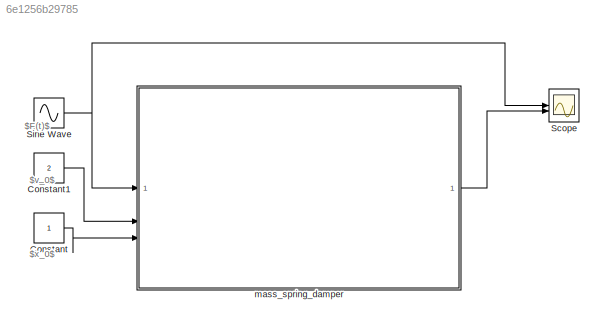
MODEL slx_6e1256b29785
KIND model
CONFIG AbsTol = auto
CONFIG EnableMultiTasking = off
CONFIG FixedStep = auto
CONFIG MaxStep = 0.01
CONFIG MinStep = auto
CONFIG RelTol = 1e-3
CONFIG SampleTimeConstraint = Unconstrained
CONFIG SolverName = VariableStepAuto
CONFIG StartTime = 0.0
CONFIG StopTime = 30
BLOCK [Constant] Constant
BLOCK [Constant] Constant1
  Value = 2
BLOCK [Scope] Scope
  Floating = off
  NumInputPorts = 2
  ScopeSpecificationString = Simulink.scopes.TimeScopeBlockCfg('CurrentConfiguration', extmgr.ConfigurationSet(extmgr.Configuration('Core','General UI',true),extmgr.Configuration('Core','Source UI',true),extmgr.Configuration('Sources','WiredSimulink',true),extmgr.Configuration('Visuals','Time Domain',true,'SerializedDisplays',{struct('MinYLimReal','-2.5','MaxYLimReal','2.5','YLabelReal','','MinYLimMag','0.00000','MaxYLimMag',...<+1465ch>
BLOCK [Sin] Sine Wave
  Amplitude = 2
  Frequency = 2
  SampleTime = 0
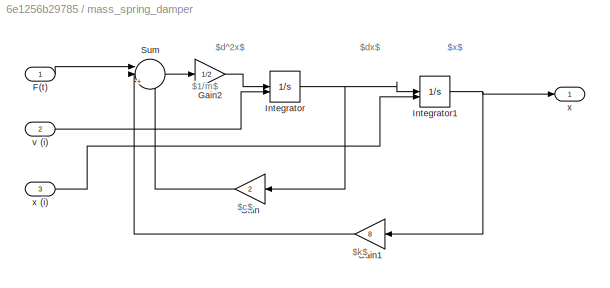
BLOCK [SubSystem] mass_spring_damper
BLOCK [Inport] mass_spring_damper/F(t)
BLOCK [Gain] mass_spring_damper/Gain
  Gain = 2
BLOCK [Gain] mass_spring_damper/Gain1
  Gain = 8
BLOCK [Gain] mass_spring_damper/Gain2
  Gain = 1/2
BLOCK [Integrator] mass_spring_damper/Integrator
  InitialCondition = 2
  InitialConditionSource = external
BLOCK [Integrator] mass_spring_damper/Integrator1
  InitialCondition = 1
  InitialConditionSource = external
BLOCK [Sum] mass_spring_damper/Sum
  Inputs = ||+--
BLOCK [Inport] mass_spring_damper/v (i)
  Port = 2
BLOCK [Outport] mass_spring_damper/x
BLOCK [Inport] mass_spring_damper/x (i)
  Port = 3
ANNOTATION (root): $F(t)$
ANNOTATION (root): $v_0$
ANNOTATION (root): $x_0$
ANNOTATION mass_spring_damper: $1/m$
ANNOTATION mass_spring_damper: $c$
ANNOTATION mass_spring_damper: $d^2x$
ANNOTATION mass_spring_damper: $dx$
ANNOTATION mass_spring_damper: $k$
ANNOTATION mass_spring_damper: $x$
LINE Constant1:1 -> mass_spring_damper:2
LINE Constant:1 -> mass_spring_damper:3
NET Sine Wave:1 -> Scope:1, mass_spring_damper:1
LINE mass_spring_damper/F(t):1 -> mass_spring_damper/Sum:1
LINE mass_spring_damper/Gain1:1 -> mass_spring_damper/Sum:2
LINE mass_spring_damper/Gain2:1 -> mass_spring_damper/Integrator:1
LINE mass_spring_damper/Gain:1 -> mass_spring_damper/Sum:3
NET mass_spring_damper/Integrator1:1 -> mass_spring_damper/Gain1:1, mass_spring_damper/x:1
NET mass_spring_damper/Integrator:1 -> mass_spring_damper/Gain:1, mass_spring_damper/Integrator1:1
LINE mass_spring_damper/Sum:1 -> mass_spring_damper/Gain2:1
LINE mass_spring_damper/v (i):1 -> mass_spring_damper/Integrator:2
LINE mass_spring_damper/x (i):1 -> mass_spring_damper/Integrator1:2
LINE mass_spring_damper:1 -> Scope:2
note: NET lines group one-source signal fan-out (src -> all destinations, sorted); 1:1 wires keep LINE
